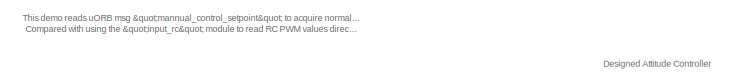
[diagram: root canvas - part 1/2, top left region]
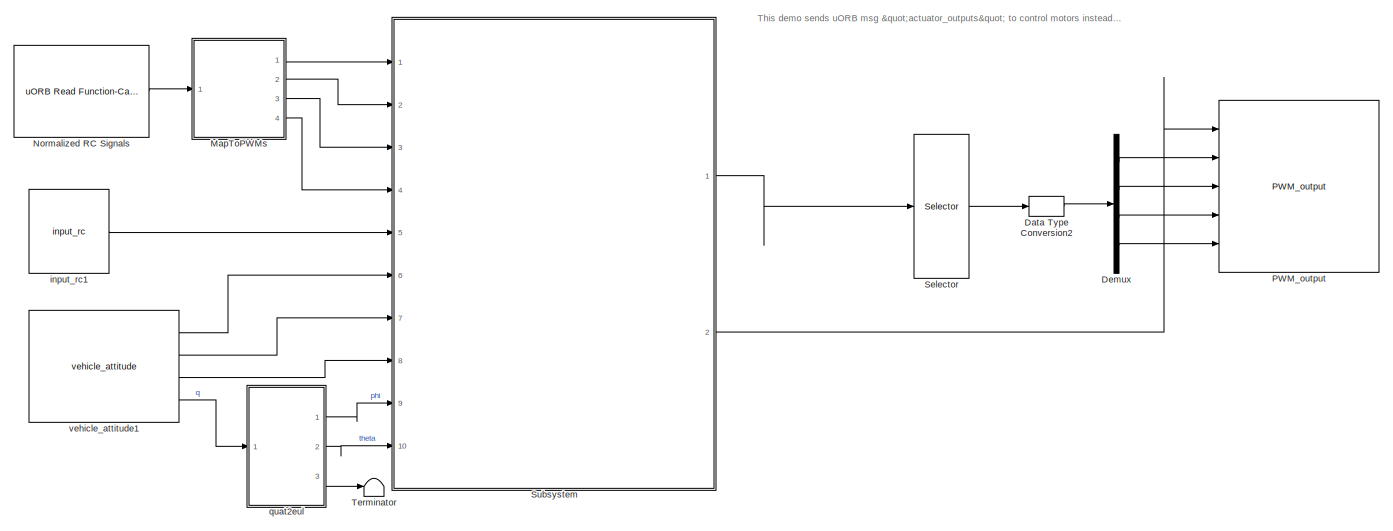
[diagram: root canvas - part 2/2, most of the canvas]
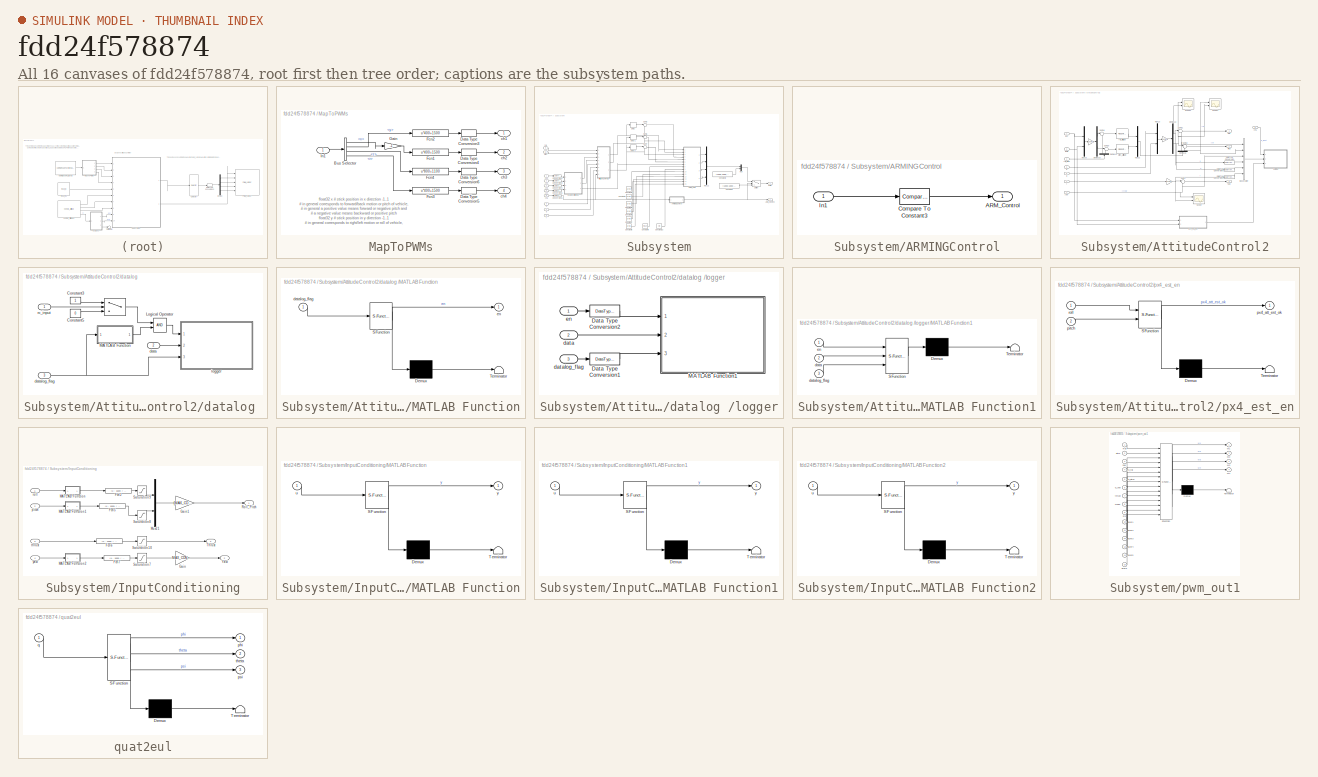
[diagram: thumbnail index - all 16 canvases of the model, root first then tree order]
MODEL slx_fdd24f578874
KIND model
CONFIG AbsTol = auto
CONFIG EnableMultiTasking = off
CONFIG FixedStep = 0.01
CONFIG InitFcn = Init_control
CONFIG MaxStep = auto
CONFIG MinStep = auto
CONFIG RelTol = 1e-3
CONFIG SampleTimeConstraint = Unconstrained
CONFIG Solver = ode4
CONFIG SolverName = ode4
CONFIG StartTime = 0.0
CONFIG StopTime = inf
BLOCK [DataTypeConversion] Data Type Conversion2
  OutDataTypeStr = uint16
  RndMeth = Floor
  SaturateOnIntegerOverflow = off
BLOCK [Demux] Demux
  Ports = [1, 4]
BLOCK [SubSystem] MapToPWMs
  Ports = [1, 4]
  RequestExecContextInheritance = off
BLOCK [BusSelector] MapToPWMs/Bus Selector
  OutputSignals = x,y,z,r
  Ports = [1, 4]
BLOCK [DataTypeConversion] MapToPWMs/Data Type Conversion3
  OutDataTypeStr = uint16
  RndMeth = Floor
  SaturateOnIntegerOverflow = off
BLOCK [DataTypeConversion] MapToPWMs/Data Type Conversion4
  OutDataTypeStr = uint16
  RndMeth = Floor
  SaturateOnIntegerOverflow = off
BLOCK [DataTypeConversion] MapToPWMs/Data Type Conversion5
  OutDataTypeStr = uint16
  RndMeth = Floor
  SaturateOnIntegerOverflow = off
BLOCK [DataTypeConversion] MapToPWMs/Data Type Conversion6
  OutDataTypeStr = uint16
  RndMeth = Floor
  SaturateOnIntegerOverflow = off
BLOCK [Fcn] MapToPWMs/Fcn1
  Expr = u*400+1500
BLOCK [Fcn] MapToPWMs/Fcn2
  Expr = u*400+1500
BLOCK [Fcn] MapToPWMs/Fcn3
  Expr = u*400+1500
BLOCK [Fcn] MapToPWMs/Fcn4
  Expr = u*800+1100
BLOCK [Gain] MapToPWMs/Gain
  Gain = -1
BLOCK [Inport] MapToPWMs/In1
BLOCK [Outport] MapToPWMs/ch1
  VectorParamsAs1DForOutWhenUnconnected = off
BLOCK [Outport] MapToPWMs/ch2
  Port = 2
  VectorParamsAs1DForOutWhenUnconnected = off
BLOCK [Outport] MapToPWMs/ch3
  Port = 3
  VectorParamsAs1DForOutWhenUnconnected = off
BLOCK [Outport] MapToPWMs/ch4
  Port = 4
  VectorParamsAs1DForOutWhenUnconnected = off
BLOCK [Reference] Normalized RC Signals  REF=pixhawk_slib_uORB_RW/uORB Read Function-Call Trigger
  Ports = [0, 1]
  SourceBlock = pixhawk_slib_uORB_RW/uORB Read Function-Call Trigger
  SourceProductName = Pixhawk Target Blocks
BLOCK [Reference] PWM_output  REF=pixhawk_slib_sensors_actuators/PWM_output
  Description = This block allows the user to send the appropriate PWM signals out to the PX4 outputs.  \nThese are usually connected to the ESCs which control the motor speeds. \nIn order for the flight control to arm (enable) the output from the software side, the ARM Output input must be held high (boolean TRUE).  \nOnly then will the PWM values be sent out the PX4 hardware ports.  \nThis is usually a function of ...<+249ch>
  Ports = [5]
  SourceBlock = pixhawk_slib_sensors_actuators/PWM_output
  SourceProductName = Pixhawk Target Blocks
  SourceType = PX4_Output_PWM
BLOCK [Selector] Selector
  IndexOptions = Index vector (dialog)
  Indices = [1 2 3 4]
  InputPortWidth = 8
  OutputSizes = 1
  Ports = [1, 1]
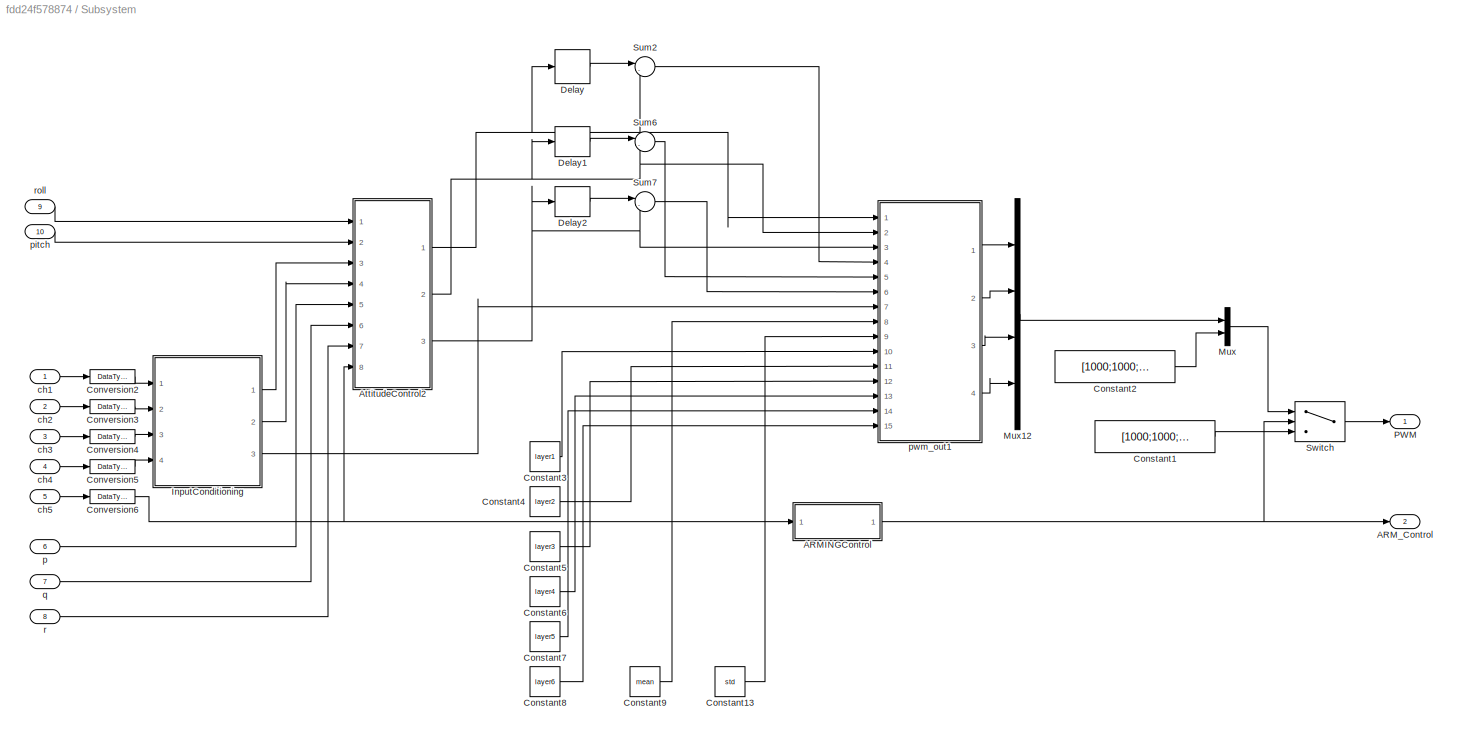
BLOCK [SubSystem] Subsystem
  Ports = [10, 2]
  RequestExecContextInheritance = off
BLOCK [SubSystem] Subsystem/ARMINGControl
  Ports = [1, 1]
  RequestExecContextInheritance = off
BLOCK [Outport] Subsystem/ARMINGControl/ARM_Control
  VectorParamsAs1DForOutWhenUnconnected = off
BLOCK [Reference] Subsystem/ARMINGControl/Compare To Constant3  REF=simulink/Logic and Bit
Operations/Compare
To Constant
  Ports = [1, 1]
  SourceBlock = simulink/Logic and Bit\nOperations/Compare\nTo Constant
  SourceProductBaseCode = SL
  SourceType = Compare To Constant
BLOCK [Inport] Subsystem/ARMINGControl/In1
BLOCK [Outport] Subsystem/ARM_Control
  Port = 2
  PortDimensions = 1
  SamplingMode = Sample based
  SignalType = real
  VectorParamsAs1DForOutWhenUnconnected = off
BLOCK [SubSystem] Subsystem/AttitudeControl2
  Ports = [8, 3]
  RequestExecContextInheritance = off
BLOCK [Gain] Subsystem/AttitudeControl2/ 
  Gain = 180/pi
BLOCK [Gain] Subsystem/AttitudeControl2/  
  Gain = 180/pi
BLOCK [Gain] Subsystem/AttitudeControl2/          
  Gain = 180/pi
BLOCK [BusCreator] Subsystem/AttitudeControl2/Bus Creator
  DisplayOption = bar
  InheritFromInputs = on
  Inputs = 6
  Ports = [6, 1]
BLOCK [DataTypeConversion] Subsystem/AttitudeControl2/Data Type Conversion
  OutDataTypeStr = double
  RndMeth = Floor
  SaturateOnIntegerOverflow = off
BLOCK [DataTypeConversion] Subsystem/AttitudeControl2/Data Type Conversion1
  OutDataTypeStr = double
  RndMeth = Floor
  SaturateOnIntegerOverflow = off
BLOCK [DataTypeConversion] Subsystem/AttitudeControl2/Data Type Conversion2
  OutDataTypeStr = double
  RndMeth = Floor
  SaturateOnIntegerOverflow = off
BLOCK [Demux] Subsystem/AttitudeControl2/Demux10
  Outputs = 2
  Ports = [1, 2]
BLOCK [Demux] Subsystem/AttitudeControl2/Demux12
  NameLocation = right
  Outputs = 2
  Ports = [1, 2]
BLOCK [Demux] Subsystem/AttitudeControl2/Demux13
  Outputs = 2
  Ports = [1, 2]
BLOCK [Demux] Subsystem/AttitudeControl2/Demux16
  NameLocation = right
  Outputs = 2
  Ports = [1, 2]
BLOCK [Mux] Subsystem/AttitudeControl2/Mux13
  DisplayOption = bar
  Inputs = 2
  Ports = [2, 1]
BLOCK [Mux] Subsystem/AttitudeControl2/Mux15
  DisplayOption = bar
  Inputs = 2
  Ports = [2, 1]
BLOCK [Mux] Subsystem/AttitudeControl2/Mux22
  DisplayOption = bar
  Inputs = 2
  Ports = [2, 1]
BLOCK [Outport] Subsystem/AttitudeControl2/Pitch
  Port = 2
  VectorParamsAs1DForOutWhenUnconnected = off
BLOCK [Outport] Subsystem/AttitudeControl2/Roll
  VectorParamsAs1DForOutWhenUnconnected = off
BLOCK [Scope] Subsystem/AttitudeControl2/Scope
  Floating = off
  NumInputPorts = 2
  Ports = [2]
  ScopeSpecificationString = Simulink.scopes.TimeScopeBlockCfg('CurrentConfiguration', extmgr.ConfigurationSet(extmgr.Configuration('Core','General UI',true),extmgr.Configuration('Core','Source UI',true),extmgr.Configuration('Sources','WiredSimulink',true,'DataLoggingVariableName','ScopeData2'),extmgr.Configuration('Visuals','Time Domain',true,'SerializedDisplays',{struct('MinYLimReal','-21.34606','MaxYLimReal','47.5262','YLa...<+1397ch>
BLOCK [Scope] Subsystem/AttitudeControl2/Scope1
  Floating = off
  NumInputPorts = 2
  Ports = [2]
  ScopeSpecificationString = Simulink.scopes.TimeScopeBlockCfg('CurrentConfiguration', extmgr.ConfigurationSet(extmgr.Configuration('Core','General UI',true),extmgr.Configuration('Core','Source UI',true),extmgr.Configuration('Sources','WiredSimulink',true,'DataLoggingVariableName','ScopeData3'),extmgr.Configuration('Visuals','Time Domain',true,'SerializedDisplays',{struct('MinYLimReal','-317.22955','MaxYLimReal','245.61283','...<+1406ch>
BLOCK [Scope] Subsystem/AttitudeControl2/Scope2
  Floating = off
  NumInputPorts = 2
  Ports = [2]
  ScopeSpecificationString = Simulink.scopes.TimeScopeBlockCfg('CurrentConfiguration', extmgr.ConfigurationSet(extmgr.Configuration('Core','General UI',true),extmgr.Configuration('Core','Source UI',true),extmgr.Configuration('Sources','WiredSimulink',true,'DataLoggingVariableName','ScopeData4'),extmgr.Configuration('Visuals','Time Domain',true,'SerializedDisplays',{struct('MinYLimReal','-330.49549','MaxYLimReal','242.5638','Y...<+1398ch>
BLOCK [Sum] Subsystem/AttitudeControl2/Sum17
  Inputs = |-+
  Ports = [2, 1]
BLOCK [Sum] Subsystem/AttitudeControl2/Sum18
  Inputs = |-+
  Ports = [2, 1]
BLOCK [Sum] Subsystem/AttitudeControl2/Sum19
  Inputs = |-+
  Ports = [2, 1]
BLOCK [Sum] Subsystem/AttitudeControl2/Sum21
  Inputs = |-+
  Ports = [2, 1]
BLOCK [Sum] Subsystem/AttitudeControl2/Sum22
  Inputs = |-+
  Ports = [2, 1]
BLOCK [Outport] Subsystem/AttitudeControl2/Yaw
  Port = 3
  VectorParamsAs1DForOutWhenUnconnected = off
BLOCK [Inport] Subsystem/AttitudeControl2/ch5
  Port = 8
BLOCK [SubSystem] Subsystem/AttitudeControl2/datalog 
  Ports = [3]
  RequestExecContextInheritance = off
BLOCK [Switch] Subsystem/AttitudeControl2/datalog / 
  Criteria = u2 > Threshold
  InputSameDT = off
  SaturateOnIntegerOverflow = off
  Threshold = 1600
BLOCK [Constant] Subsystem/AttitudeControl2/datalog /Constant3
BLOCK [Constant] Subsystem/AttitudeControl2/datalog /Constant5
  Value = 0
BLOCK [Logic] Subsystem/AttitudeControl2/datalog /Logical Operator
  AllPortsSameDT = off
  OutDataTypeStr = boolean
  Ports = [2, 1]
BLOCK [SubSystem] Subsystem/AttitudeControl2/datalog /MATLAB Function
  ErrorFcn = Stateflow.Translate.translate
  PermitHierarchicalResolution = ExplicitOnly
  Ports = [1, 1]
  RequestExecContextInheritance = off
  SFBlockType = MATLAB Function
  TreatAsAtomicUnit = on
BLOCK [Demux] Subsystem/AttitudeControl2/datalog /MATLAB Function/ Demux 
  Outputs = 1
  Ports = [1, 1]
BLOCK [S-Function] Subsystem/AttitudeControl2/datalog /MATLAB Function/ SFunction 
  EnableBusSupport = on
  FunctionName = sf_sfun
  PortCounts = [1 2]
  Ports = [1, 2]
  SFcnIsStateOwnerBlock = off
  SFunctionDeploymentMode = off
  Tag = Stateflow S-Function 4
BLOCK [Terminator] Subsystem/AttitudeControl2/datalog /MATLAB Function/ Terminator 
BLOCK [Inport] Subsystem/AttitudeControl2/datalog /MATLAB Function/datalog_flag
BLOCK [Outport] Subsystem/AttitudeControl2/datalog /MATLAB Function/en
  VectorParamsAs1DForOutWhenUnconnected = off
BLOCK [Inport] Subsystem/AttitudeControl2/datalog /data
  Port = 2
BLOCK [Inport] Subsystem/AttitudeControl2/datalog /datalog_flag
  Port = 3
BLOCK [SubSystem] Subsystem/AttitudeControl2/datalog /logger
  Ports = [3]
  RequestExecContextInheritance = off
BLOCK [DataTypeConversion] Subsystem/AttitudeControl2/datalog /logger/Data Type Conversion1
  OutDataTypeStr = boolean
  RndMeth = Floor
  SaturateOnIntegerOverflow = off
BLOCK [DataTypeConversion] Subsystem/AttitudeControl2/datalog /logger/Data Type Conversion2
  OutDataTypeStr = boolean
  RndMeth = Floor
  SaturateOnIntegerOverflow = off
BLOCK [SubSystem] Subsystem/AttitudeControl2/datalog /logger/MATLAB Function1
  ErrorFcn = Stateflow.Translate.translate
  PermitHierarchicalResolution = ExplicitOnly
  Ports = [3]
  RequestExecContextInheritance = off
  SFBlockType = MATLAB Function
  TreatAsAtomicUnit = on
BLOCK [Demux] Subsystem/AttitudeControl2/datalog /logger/MATLAB Function1/ Demux 
  Outputs = 1
  Ports = [1, 1]
BLOCK [S-Function] Subsystem/AttitudeControl2/datalog /logger/MATLAB Function1/ SFunction 
  EnableBusSupport = on
  FunctionName = sf_sfun
  Parameters = cacheflag,logname,numRecs
  PortCounts = [3 1]
  Ports = [3, 1]
  SFcnIsStateOwnerBlock = off
  SFunctionDeploymentMode = off
  Tag = Stateflow S-Function 5
BLOCK [Terminator] Subsystem/AttitudeControl2/datalog /logger/MATLAB Function1/ Terminator 
BLOCK [Inport] Subsystem/AttitudeControl2/datalog /logger/MATLAB Function1/data
  Port = 2
BLOCK [Inport] Subsystem/AttitudeControl2/datalog /logger/MATLAB Function1/datalog_flag
  Port = 3
BLOCK [Inport] Subsystem/AttitudeControl2/datalog /logger/MATLAB Function1/en
BLOCK [Inport] Subsystem/AttitudeControl2/datalog /logger/data
  Port = 2
BLOCK [Inport] Subsystem/AttitudeControl2/datalog /logger/datalog_flag
  Port = 3
BLOCK [Inport] Subsystem/AttitudeControl2/datalog /logger/en
BLOCK [Inport] Subsystem/AttitudeControl2/datalog /rc_input
BLOCK [Inport] Subsystem/AttitudeControl2/p
  Port = 5
BLOCK [Inport] Subsystem/AttitudeControl2/phi
BLOCK [Reference] Subsystem/AttitudeControl2/pitch_attitude  REF=simulink/Continuous/PID Controller
  Ports = [1, 1]
  SourceBlock = simulink/Continuous/PID Controller
  SourceProductBaseCode = SL
  SourceType = PID 1dof
BLOCK [SubSystem] Subsystem/AttitudeControl2/px4_est_en
  ErrorFcn = Stateflow.Translate.translate
  PermitHierarchicalResolution = ExplicitOnly
  Ports = [2, 1]
  RequestExecContextInheritance = off
  SFBlockType = MATLAB Function
  TreatAsAtomicUnit = on
BLOCK [Demux] Subsystem/AttitudeControl2/px4_est_en/ Demux 
  Outputs = 1
  Ports = [1, 1]
BLOCK [S-Function] Subsystem/AttitudeControl2/px4_est_en/ SFunction 
  EnableBusSupport = on
  FunctionName = sf_sfun
  PortCounts = [2 2]
  Ports = [2, 2]
  SFcnIsStateOwnerBlock = off
  SFunctionDeploymentMode = off
  Tag = Stateflow S-Function 6
BLOCK [Terminator] Subsystem/AttitudeControl2/px4_est_en/ Terminator 
BLOCK [Inport] Subsystem/AttitudeControl2/px4_est_en/pitch
  Port = 2
BLOCK [Outport] Subsystem/AttitudeControl2/px4_est_en/px4_att_est_ok
  VectorParamsAs1DForOutWhenUnconnected = off
BLOCK [Inport] Subsystem/AttitudeControl2/px4_est_en/roll
BLOCK [Inport] Subsystem/AttitudeControl2/q
  Port = 6
BLOCK [Inport] Subsystem/AttitudeControl2/r
  Port = 7
BLOCK [Reference] Subsystem/AttitudeControl2/roll_attitude  REF=simulink/Continuous/PID Controller
  Ports = [1, 1]
  SourceBlock = simulink/Continuous/PID Controller
  SourceProductBaseCode = SL
  SourceType = PID 1dof
BLOCK [Inport] Subsystem/AttitudeControl2/roll_pitch
  Port = 3
BLOCK [Inport] Subsystem/AttitudeControl2/theta
  Port = 2
BLOCK [Inport] Subsystem/AttitudeControl2/yaw
  Port = 4
BLOCK [Constant] Subsystem/Constant1
  Value = [1000;1000;1000;1000;1000;1000;1000;1000]
BLOCK [Constant] Subsystem/Constant13
  Value = std
BLOCK [Constant] Subsystem/Constant2
  Value = [1000;1000;1000;1000]
BLOCK [Constant] Subsystem/Constant3
  Value = layer1
BLOCK [Constant] Subsystem/Constant4
  Value = layer2
BLOCK [Constant] Subsystem/Constant5
  Value = layer3
BLOCK [Constant] Subsystem/Constant6
  Value = layer4
BLOCK [Constant] Subsystem/Constant7
  Value = layer5
BLOCK [Constant] Subsystem/Constant8
  Value = layer6
BLOCK [Constant] Subsystem/Constant9
  Value = mean
BLOCK [DataTypeConversion] Subsystem/Conversion2
  OutDataTypeStr = double
  RndMeth = Floor
  SaturateOnIntegerOverflow = off
BLOCK [DataTypeConversion] Subsystem/Conversion3
  OutDataTypeStr = double
  RndMeth = Floor
  SaturateOnIntegerOverflow = off
BLOCK [DataTypeConversion] Subsystem/Conversion4
  OutDataTypeStr = double
  RndMeth = Floor
  SaturateOnIntegerOverflow = off
BLOCK [DataTypeConversion] Subsystem/Conversion5
  OutDataTypeStr = double
  RndMeth = Floor
  SaturateOnIntegerOverflow = off
BLOCK [DataTypeConversion] Subsystem/Conversion6
  OutDataTypeStr = double
  RndMeth = Floor
  SaturateOnIntegerOverflow = off
BLOCK [Delay] Subsystem/Delay
  DelayLength = 1
  InitialCondition = 0
  InputPortMap = u0
  Ports = [1, 1]
BLOCK [Delay] Subsystem/Delay1
  DelayLength = 1
  InitialCondition = 0
  InputPortMap = u0
  Ports = [1, 1]
BLOCK [Delay] Subsystem/Delay2
  DelayLength = 1
  InitialCondition = 0
  InputPortMap = u0
  Ports = [1, 1]
BLOCK [SubSystem] Subsystem/InputConditioning
  Ports = [4, 3]
  RequestExecContextInheritance = off
BLOCK [Fcn] Subsystem/InputConditioning/Fcn2
  Expr = (u - 1500) / 400
BLOCK [Fcn] Subsystem/InputConditioning/Fcn5
  Expr = (u - 1500) / 400
BLOCK [Fcn] Subsystem/InputConditioning/Fcn6
  Expr = (u - 1100) / 800
BLOCK [Fcn] Subsystem/InputConditioning/Fcn7
  Expr = (u - 1500) / 400
BLOCK [Gain] Subsystem/InputConditioning/Gain
  Gain = MAX_CONTROL_ANGLE_RATE_Y
BLOCK [Gain] Subsystem/InputConditioning/Gain1
  Gain = [MAX_CONTROL_ANGLE_RP MAX_CONTROL_ANGLE_RP]
  OutDataTypeStr = Inherit: Inherit via back propagation
BLOCK [SubSystem] Subsystem/InputConditioning/MATLAB Function
  ErrorFcn = Stateflow.Translate.translate
  PermitHierarchicalResolution = ExplicitOnly
  Ports = [1, 1]
  RequestExecContextInheritance = off
  SFBlockType = MATLAB Function
  TreatAsAtomicUnit = on
BLOCK [Demux] Subsystem/InputConditioning/MATLAB Function/ Demux 
  Outputs = 1
  Ports = [1, 1]
BLOCK [S-Function] Subsystem/InputConditioning/MATLAB Function/ SFunction 
  EnableBusSupport = on
  FunctionName = sf_sfun
  PortCounts = [1 2]
  Ports = [1, 2]
  SFcnIsStateOwnerBlock = off
  SFunctionDeploymentMode = off
  Tag = Stateflow S-Function 1
BLOCK [Terminator] Subsystem/InputConditioning/MATLAB Function/ Terminator 
BLOCK [Inport] Subsystem/InputConditioning/MATLAB Function/u
BLOCK [Outport] Subsystem/InputConditioning/MATLAB Function/y
  VectorParamsAs1DForOutWhenUnconnected = off
BLOCK [SubSystem] Subsystem/InputConditioning/MATLAB Function1
  ErrorFcn = Stateflow.Translate.translate
  PermitHierarchicalResolution = ExplicitOnly
  Ports = [1, 1]
  RequestExecContextInheritance = off
  SFBlockType = MATLAB Function
  TreatAsAtomicUnit = on
BLOCK [Demux] Subsystem/InputConditioning/MATLAB Function1/ Demux 
  Outputs = 1
  Ports = [1, 1]
BLOCK [S-Function] Subsystem/InputConditioning/MATLAB Function1/ SFunction 
  EnableBusSupport = on
  FunctionName = sf_sfun
  PortCounts = [1 2]
  Ports = [1, 2]
  SFcnIsStateOwnerBlock = off
  SFunctionDeploymentMode = off
  Tag = Stateflow S-Function 2
BLOCK [Terminator] Subsystem/InputConditioning/MATLAB Function1/ Terminator 
BLOCK [Inport] Subsystem/InputConditioning/MATLAB Function1/u
BLOCK [Outport] Subsystem/InputConditioning/MATLAB Function1/y
  VectorParamsAs1DForOutWhenUnconnected = off
BLOCK [SubSystem] Subsystem/InputConditioning/MATLAB Function2
  ErrorFcn = Stateflow.Translate.translate
  PermitHierarchicalResolution = ExplicitOnly
  Ports = [1, 1]
  RequestExecContextInheritance = off
  SFBlockType = MATLAB Function
  TreatAsAtomicUnit = on
BLOCK [Demux] Subsystem/InputConditioning/MATLAB Function2/ Demux 
  Outputs = 1
  Ports = [1, 1]
BLOCK [S-Function] Subsystem/InputConditioning/MATLAB Function2/ SFunction 
  EnableBusSupport = on
  FunctionName = sf_sfun
  PortCounts = [1 2]
  Ports = [1, 2]
  SFcnIsStateOwnerBlock = off
  SFunctionDeploymentMode = off
  Tag = Stateflow S-Function 3
BLOCK [Terminator] Subsystem/InputConditioning/MATLAB Function2/ Terminator 
BLOCK [Inport] Subsystem/InputConditioning/MATLAB Function2/u
BLOCK [Outport] Subsystem/InputConditioning/MATLAB Function2/y
  VectorParamsAs1DForOutWhenUnconnected = off
BLOCK [Mux] Subsystem/InputConditioning/Mux21
  DisplayOption = bar
  Inputs = 2
  Ports = [2, 1]
BLOCK [Outport] Subsystem/InputConditioning/Roll_Pitch
  VectorParamsAs1DForOutWhenUnconnected = off
BLOCK [Saturate] Subsystem/InputConditioning/Saturation10
  LowerLimit = 0
  UpperLimit = 1
BLOCK [Saturate] Subsystem/InputConditioning/Saturation7
  LowerLimit = -1
  UpperLimit = 1
BLOCK [Saturate] Subsystem/InputConditioning/Saturation8
  LowerLimit = -1
  UpperLimit = 1
BLOCK [Saturate] Subsystem/InputConditioning/Saturation9
  LowerLimit = -1
  UpperLimit = 1
BLOCK [Outport] Subsystem/InputConditioning/Thrust
  Port = 3
  VectorParamsAs1DForOutWhenUnconnected = off
BLOCK [Outport] Subsystem/InputConditioning/Yaw
  Port = 2
  VectorParamsAs1DForOutWhenUnconnected = off
BLOCK [Inport] Subsystem/InputConditioning/pitch
  Port = 2
BLOCK [Inport] Subsystem/InputConditioning/roll
BLOCK [Inport] Subsystem/InputConditioning/thrust
  Port = 3
BLOCK [Inport] Subsystem/InputConditioning/yaw
  Port = 4
BLOCK [Mux] Subsystem/Mux
  DisplayOption = bar
  Inputs = 2
  Ports = [2, 1]
BLOCK [Mux] Subsystem/Mux12
  DisplayOption = bar
  Ports = [4, 1]
BLOCK [Outport] Subsystem/PWM
  PortDimensions = 8
  SamplingMode = Sample based
  SignalType = real
  VectorParamsAs1DForOutWhenUnconnected = off
BLOCK [Sum] Subsystem/Sum2
  Inputs = |-+
  Ports = [2, 1]
BLOCK [Sum] Subsystem/Sum6
  Inputs = |-+
  Ports = [2, 1]
BLOCK [Sum] Subsystem/Sum7
  Inputs = |-+
  Ports = [2, 1]
BLOCK [Switch] Subsystem/Switch
  Criteria = u2 > Threshold
  InputSameDT = off
  SaturateOnIntegerOverflow = off
  Threshold = 0.5
BLOCK [Inport] Subsystem/ch1
  OutDataTypeStr = uint16
  PortDimensions = 1
  SamplingMode = Sample based
  SignalType = real
BLOCK [Inport] Subsystem/ch2
  OutDataTypeStr = uint16
  Port = 2
  PortDimensions = 1
  SamplingMode = Sample based
  SignalType = real
BLOCK [Inport] Subsystem/ch3
  OutDataTypeStr = uint16
  Port = 3
  PortDimensions = 1
  SamplingMode = Sample based
  SignalType = real
BLOCK [Inport] Subsystem/ch4
  OutDataTypeStr = uint16
  Port = 4
  PortDimensions = 1
  SamplingMode = Sample based
  SignalType = real
BLOCK [Inport] Subsystem/ch5
  Interpolate = off
  OutDataTypeStr = uint16
  Port = 5
  PortDimensions = 1
  SamplingMode = Sample based
  SignalType = real
BLOCK [Inport] Subsystem/p
  Port = 6
  PortDimensions = 1
  SamplingMode = Sample based
  SignalType = real
BLOCK [Inport] Subsystem/pitch
  Port = 10
  PortDimensions = 1
  SamplingMode = Sample based
  SignalType = real
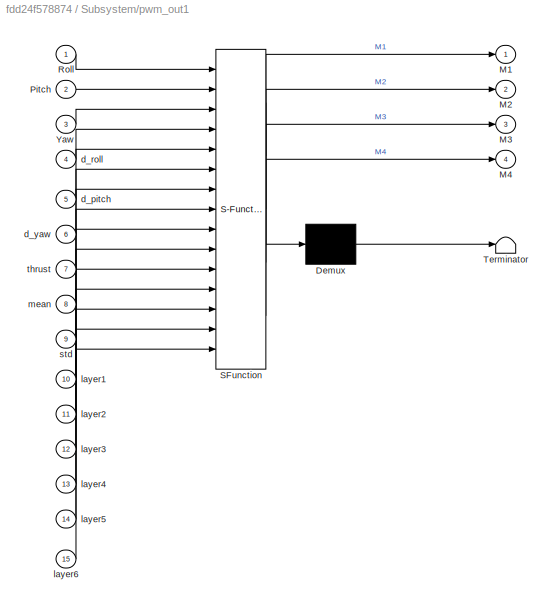
BLOCK [SubSystem] Subsystem/pwm_out1
  ErrorFcn = Stateflow.Translate.translate
  PermitHierarchicalResolution = ExplicitOnly
  Ports = [15, 4]
  RequestExecContextInheritance = off
  SFBlockType = MATLAB Function
  TreatAsAtomicUnit = on
BLOCK [Demux] Subsystem/pwm_out1/ Demux 
  Outputs = 1
  Ports = [1, 1]
BLOCK [S-Function] Subsystem/pwm_out1/ SFunction 
  EnableBusSupport = on
  FunctionName = sf_sfun
  PortCounts = [15 5]
  Ports = [15, 5]
  SFcnIsStateOwnerBlock = off
  SFunctionDeploymentMode = off
  Tag = Stateflow S-Function 8
BLOCK [Terminator] Subsystem/pwm_out1/ Terminator 
BLOCK [Outport] Subsystem/pwm_out1/M1
  VectorParamsAs1DForOutWhenUnconnected = off
BLOCK [Outport] Subsystem/pwm_out1/M2
  Port = 2
  VectorParamsAs1DForOutWhenUnconnected = off
BLOCK [Outport] Subsystem/pwm_out1/M3
  Port = 3
  VectorParamsAs1DForOutWhenUnconnected = off
BLOCK [Outport] Subsystem/pwm_out1/M4
  Port = 4
  VectorParamsAs1DForOutWhenUnconnected = off
BLOCK [Inport] Subsystem/pwm_out1/Pitch
  Port = 2
BLOCK [Inport] Subsystem/pwm_out1/Roll
BLOCK [Inport] Subsystem/pwm_out1/Yaw
  Port = 3
BLOCK [Inport] Subsystem/pwm_out1/d_pitch
  Port = 5
BLOCK [Inport] Subsystem/pwm_out1/d_roll
  Port = 4
BLOCK [Inport] Subsystem/pwm_out1/d_yaw
  Port = 6
BLOCK [Inport] Subsystem/pwm_out1/layer1
  Port = 10
BLOCK [Inport] Subsystem/pwm_out1/layer2
  Port = 11
BLOCK [Inport] Subsystem/pwm_out1/layer3
  Port = 12
BLOCK [Inport] Subsystem/pwm_out1/layer4
  Port = 13
BLOCK [Inport] Subsystem/pwm_out1/layer5
  Port = 14
BLOCK [Inport] Subsystem/pwm_out1/layer6
  Port = 15
BLOCK [Inport] Subsystem/pwm_out1/mean
  Port = 8
BLOCK [Inport] Subsystem/pwm_out1/std
  Port = 9
BLOCK [Inport] Subsystem/pwm_out1/thrust
  Port = 7
BLOCK [Inport] Subsystem/q
  Port = 7
  PortDimensions = 1
  SamplingMode = Sample based
  SignalType = real
BLOCK [Inport] Subsystem/r
  Port = 8
  PortDimensions = 1
  SamplingMode = Sample based
  SignalType = real
BLOCK [Inport] Subsystem/roll
  Port = 9
  PortDimensions = 1
  SamplingMode = Sample based
  SignalType = real
BLOCK [Terminator] Terminator
BLOCK [Reference] input_rc1  REF=pixhawk_slib_sensors_actuators/input_rc
  Description = RC Input Block\n\nThis block provides user input control to the model.\nIt uses the input_rc uORB topic.\n\nThe user has the ability to choose which channels are available as outputs from this block and also some optional outputs. These include \nChannels 1 through 18\ndouble data type indicating the PWM value from the controller \nmeasured pulse widths for each of the supported channels \nChannel Count \nu...<+1797ch>
  Ports = [0, 1]
  SourceBlock = pixhawk_slib_sensors_actuators/input_rc
  SourceProductName = Pixhawk Target Blocks
  SourceType = PX4_Input_RC
BLOCK [SubSystem] quat2eul
  ErrorFcn = Stateflow.Translate.translate
  PermitHierarchicalResolution = ExplicitOnly
  Ports = [1, 3]
  RequestExecContextInheritance = off
  SFBlockType = MATLAB Function
  TreatAsAtomicUnit = on
BLOCK [Demux] quat2eul/ Demux 
  Outputs = 1
  Ports = [1, 1]
BLOCK [S-Function] quat2eul/ SFunction 
  EnableBusSupport = on
  FunctionName = sf_sfun
  PortCounts = [1 4]
  Ports = [1, 4]
  SFcnIsStateOwnerBlock = off
  SFunctionDeploymentMode = off
  Tag = Stateflow S-Function 10
BLOCK [Terminator] quat2eul/ Terminator 
BLOCK [Outport] quat2eul/phi
  VectorParamsAs1DForOutWhenUnconnected = off
BLOCK [Outport] quat2eul/psi
  Port = 3
  VectorParamsAs1DForOutWhenUnconnected = off
BLOCK [Inport] quat2eul/q
BLOCK [Outport] quat2eul/theta
  Port = 2
  VectorParamsAs1DForOutWhenUnconnected = off
BLOCK [Reference] vehicle_attitude1  REF=pixhawk_slib_sensors_actuators/vehicle_attitude
  Ports = [0, 4]
  SourceBlock = pixhawk_slib_sensors_actuators/vehicle_attitude
  SourceProductName = Pixhawk Target Blocks
  SourceType = PX4_Vehicle_Attitude
ANNOTATION (root): Designed Attitude Controller
ANNOTATION (root): This demo reads uORB msg "mannual_control_setpoint" to acquire normalized and calibrated RC signals (-1~1 for pitch, roll, yaw control, and 0~1 for throttle control) and then map them to 1000~2000's PWMs values. Compared with using the "input_rc" module to read RC PWM values directlly, this is more reliable and convinenient because you don't need to worry about calibration of RCs.
ANNOTATION (root): This demo sends uORB msg "actuator_outputs" to control motors instead of using the "PWM_output" module, because this demo is for hardware-in-the-loop simulation, we need to send control signals to CopterSim instead of acutal motors.
ANNOTATION MapToPWMs: float32 x # stick position in x direction -1..1 # in general corresponds to forward/back motion or pitch of vehicle, # in general a positive value means forward or negative pitch and # a negative value means backward or positive pitch float32 y # stick position in y direction -1..1 # in general corresponds to right/left motion or roll of vehicle, # in general a positive value means right or positi...<+526ch>
LINE Data Type Conversion2:1 -> Demux:1
LINE Demux:1 -> PWM_output:2
LINE Demux:2 -> PWM_output:3
LINE Demux:3 -> PWM_output:4
LINE Demux:4 -> PWM_output:5
LINE MapToPWMs/Bus Selector:1 -> MapToPWMs/Gain:1
LINE MapToPWMs/Bus Selector:2 -> MapToPWMs/Fcn2:1
LINE MapToPWMs/Bus Selector:3 -> MapToPWMs/Fcn4:1
LINE MapToPWMs/Bus Selector:4 -> MapToPWMs/Fcn3:1
LINE MapToPWMs/Data Type Conversion3:1 -> MapToPWMs/ch1:1
LINE MapToPWMs/Data Type Conversion4:1 -> MapToPWMs/ch2:1
LINE MapToPWMs/Data Type Conversion5:1 -> MapToPWMs/ch4:1
LINE MapToPWMs/Data Type Conversion6:1 -> MapToPWMs/ch3:1
LINE MapToPWMs/Fcn1:1 -> MapToPWMs/Data Type Conversion4:1
LINE MapToPWMs/Fcn2:1 -> MapToPWMs/Data Type Conversion3:1
LINE MapToPWMs/Fcn3:1 -> MapToPWMs/Data Type Conversion5:1
LINE MapToPWMs/Fcn4:1 -> MapToPWMs/Data Type Conversion6:1
LINE MapToPWMs/Gain:1 -> MapToPWMs/Fcn1:1
LINE MapToPWMs/In1:1 -> MapToPWMs/Bus Selector:1
LINE MapToPWMs:1 -> Subsystem:1
LINE MapToPWMs:2 -> Subsystem:2
LINE MapToPWMs:3 -> Subsystem:3
LINE MapToPWMs:4 -> Subsystem:4
LINE Normalized RC Signals:1 -> MapToPWMs:1
LINE Selector:1 -> Data Type Conversion2:1
LINE Subsystem/ARMINGControl/Compare To Constant3:1 -> Subsystem/ARMINGControl/ARM_Control:1
LINE Subsystem/ARMINGControl/In1:1 -> Subsystem/ARMINGControl/Compare To Constant3:1
NET Subsystem/ARMINGControl:1 -> Subsystem/ARM_Control:1, Subsystem/Switch:2
NET Subsystem/AttitudeControl2/          :1 -> Subsystem/AttitudeControl2/Data Type Conversion2:1, Subsystem/AttitudeControl2/Scope:2, Subsystem/AttitudeControl2/Sum17:1
LINE Subsystem/AttitudeControl2/  :1 -> Subsystem/AttitudeControl2/Demux13:1
LINE Subsystem/AttitudeControl2/ :1 -> Subsystem/AttitudeControl2/Demux10:1
LINE Subsystem/AttitudeControl2/Bus Creator:1 -> Subsystem/AttitudeControl2/datalog :2
LINE Subsystem/AttitudeControl2/Data Type Conversion1:1 -> Subsystem/AttitudeControl2/Bus Creator:5
LINE Subsystem/AttitudeControl2/Data Type Conversion2:1 -> Subsystem/AttitudeControl2/Bus Creator:6
LINE Subsystem/AttitudeControl2/Data Type Conversion:1 -> Subsystem/AttitudeControl2/Bus Creator:4
LINE Subsystem/AttitudeControl2/Demux10:1 -> Subsystem/AttitudeControl2/Sum18:1
LINE Subsystem/AttitudeControl2/Demux10:2 -> Subsystem/AttitudeControl2/Sum19:1
LINE Subsystem/AttitudeControl2/Demux12:1 -> Subsystem/AttitudeControl2/Sum18:2
LINE Subsystem/AttitudeControl2/Demux12:2 -> Subsystem/AttitudeControl2/Sum19:2
NET Subsystem/AttitudeControl2/Demux13:1 -> Subsystem/AttitudeControl2/Data Type Conversion:1, Subsystem/AttitudeControl2/Scope2:2, Subsystem/AttitudeControl2/Sum21:1
NET Subsystem/AttitudeControl2/Demux13:2 -> Subsystem/AttitudeControl2/Data Type Conversion1:1, Subsystem/AttitudeControl2/Scope1:2, Subsystem/AttitudeControl2/Sum22:1
NET Subsystem/AttitudeControl2/Demux16:1 -> Subsystem/AttitudeControl2/Bus Creator:1, Subsystem/AttitudeControl2/Scope2:1, Subsystem/AttitudeControl2/Sum21:2
NET Subsystem/AttitudeControl2/Demux16:2 -> Subsystem/AttitudeControl2/Bus Creator:2, Subsystem/AttitudeControl2/Scope1:1, Subsystem/AttitudeControl2/Sum22:2
LINE Subsystem/AttitudeControl2/Mux13:1 -> Subsystem/AttitudeControl2/  :1
LINE Subsystem/AttitudeControl2/Mux15:1 -> Subsystem/AttitudeControl2/ :1
LINE Subsystem/AttitudeControl2/Mux22:1 -> Subsystem/AttitudeControl2/Demux16:1
LINE Subsystem/AttitudeControl2/Sum17:1 -> Subsystem/AttitudeControl2/Yaw:1
LINE Subsystem/AttitudeControl2/Sum18:1 -> Subsystem/AttitudeControl2/roll_attitude:1
LINE Subsystem/AttitudeControl2/Sum19:1 -> Subsystem/AttitudeControl2/pitch_attitude:1
LINE Subsystem/AttitudeControl2/Sum21:1 -> Subsystem/AttitudeControl2/Roll:1
LINE Subsystem/AttitudeControl2/Sum22:1 -> Subsystem/AttitudeControl2/Pitch:1
LINE Subsystem/AttitudeControl2/ch5:1 -> Subsystem/AttitudeControl2/datalog :1
LINE Subsystem/AttitudeControl2/datalog / :1 -> Subsystem/AttitudeControl2/datalog /Logical Operator:1
LINE Subsystem/AttitudeControl2/datalog /Constant3:1 -> Subsystem/AttitudeControl2/datalog / :1
LINE Subsystem/AttitudeControl2/datalog /Constant5:1 -> Subsystem/AttitudeControl2/datalog / :3
LINE Subsystem/AttitudeControl2/datalog /Logical Operator:1 -> Subsystem/AttitudeControl2/datalog /logger:1
LINE Subsystem/AttitudeControl2/datalog /MATLAB Function:1 -> Subsystem/AttitudeControl2/datalog /Logical Operator:2
LINE Subsystem/AttitudeControl2/datalog /data:1 -> Subsystem/AttitudeControl2/datalog /logger:2
NET Subsystem/AttitudeControl2/datalog /datalog_flag:1 -> Subsystem/AttitudeControl2/datalog /MATLAB Function:1, Subsystem/AttitudeControl2/datalog /logger:3
LINE Subsystem/AttitudeControl2/datalog /logger/Data Type Conversion1:1 -> Subsystem/AttitudeControl2/datalog /logger/MATLAB Function1:3
LINE Subsystem/AttitudeControl2/datalog /logger/Data Type Conversion2:1 -> Subsystem/AttitudeControl2/datalog /logger/MATLAB Function1:1
LINE Subsystem/AttitudeControl2/datalog /logger/data:1 -> Subsystem/AttitudeControl2/datalog /logger/MATLAB Function1:2
LINE Subsystem/AttitudeControl2/datalog /logger/datalog_flag:1 -> Subsystem/AttitudeControl2/datalog /logger/Data Type Conversion1:1
LINE Subsystem/AttitudeControl2/datalog /logger/en:1 -> Subsystem/AttitudeControl2/datalog /logger/Data Type Conversion2:1
LINE Subsystem/AttitudeControl2/datalog /rc_input:1 -> Subsystem/AttitudeControl2/datalog / :2
LINE Subsystem/AttitudeControl2/p:1 -> Subsystem/AttitudeControl2/Mux13:1
NET Subsystem/AttitudeControl2/phi:1 -> Subsystem/AttitudeControl2/Mux15:1, Subsystem/AttitudeControl2/px4_est_en:1
LINE Subsystem/AttitudeControl2/pitch_attitude:1 -> Subsystem/AttitudeControl2/Mux22:2
LINE Subsystem/AttitudeControl2/px4_est_en:1 -> Subsystem/AttitudeControl2/datalog :3
LINE Subsystem/AttitudeControl2/q:1 -> Subsystem/AttitudeControl2/Mux13:2
LINE Subsystem/AttitudeControl2/r:1 -> Subsystem/AttitudeControl2/          :1
LINE Subsystem/AttitudeControl2/roll_attitude:1 -> Subsystem/AttitudeControl2/Mux22:1
LINE Subsystem/AttitudeControl2/roll_pitch:1 -> Subsystem/AttitudeControl2/Demux12:1
NET Subsystem/AttitudeControl2/theta:1 -> Subsystem/AttitudeControl2/Mux15:2, Subsystem/AttitudeControl2/px4_est_en:2
NET Subsystem/AttitudeControl2/yaw:1 -> Subsystem/AttitudeControl2/Bus Creator:3, Subsystem/AttitudeControl2/Scope:1, Subsystem/AttitudeControl2/Sum17:2
NET Subsystem/AttitudeControl2:1 -> Subsystem/Delay:1, Subsystem/Sum2:2, Subsystem/pwm_out1:1
NET Subsystem/AttitudeControl2:2 -> Subsystem/Delay1:1, Subsystem/Sum6:2, Subsystem/pwm_out1:2
NET Subsystem/AttitudeControl2:3 -> Subsystem/Delay2:1, Subsystem/Sum7:2, Subsystem/pwm_out1:3
LINE Subsystem/Constant13:1 -> Subsystem/pwm_out1:9
LINE Subsystem/Constant1:1 -> Subsystem/Switch:3
LINE Subsystem/Constant2:1 -> Subsystem/Mux:2
LINE Subsystem/Constant3:1 -> Subsystem/pwm_out1:10
LINE Subsystem/Constant4:1 -> Subsystem/pwm_out1:11
LINE Subsystem/Constant5:1 -> Subsystem/pwm_out1:12
LINE Subsystem/Constant6:1 -> Subsystem/pwm_out1:13
LINE Subsystem/Constant7:1 -> Subsystem/pwm_out1:14
LINE Subsystem/Constant8:1 -> Subsystem/pwm_out1:15
LINE Subsystem/Constant9:1 -> Subsystem/pwm_out1:8
LINE Subsystem/Conversion2:1 -> Subsystem/InputConditioning:1
LINE Subsystem/Conversion3:1 -> Subsystem/InputConditioning:2
LINE Subsystem/Conversion4:1 -> Subsystem/InputConditioning:3
LINE Subsystem/Conversion5:1 -> Subsystem/InputConditioning:4
NET Subsystem/Conversion6:1 -> Subsystem/ARMINGControl:1, Subsystem/AttitudeControl2:8
LINE Subsystem/Delay1:1 -> Subsystem/Sum6:1
LINE Subsystem/Delay2:1 -> Subsystem/Sum7:1
LINE Subsystem/Delay:1 -> Subsystem/Sum2:1
LINE Subsystem/InputConditioning/Fcn2:1 -> Subsystem/InputConditioning/Saturation9:1
LINE Subsystem/InputConditioning/Fcn5:1 -> Subsystem/InputConditioning/Saturation8:1
LINE Subsystem/InputConditioning/Fcn6:1 -> Subsystem/InputConditioning/Saturation10:1
LINE Subsystem/InputConditioning/Fcn7:1 -> Subsystem/InputConditioning/Saturation7:1
LINE Subsystem/InputConditioning/Gain1:1 -> Subsystem/InputConditioning/Roll_Pitch:1
LINE Subsystem/InputConditioning/Gain:1 -> Subsystem/InputConditioning/Yaw:1
LINE Subsystem/InputConditioning/MATLAB Function1:1 -> Subsystem/InputConditioning/Fcn5:1
LINE Subsystem/InputConditioning/MATLAB Function2:1 -> Subsystem/InputConditioning/Fcn7:1
LINE Subsystem/InputConditioning/MATLAB Function:1 -> Subsystem/InputConditioning/Fcn2:1
LINE Subsystem/InputConditioning/Mux21:1 -> Subsystem/InputConditioning/Gain1:1
LINE Subsystem/InputConditioning/Saturation10:1 -> Subsystem/InputConditioning/Thrust:1
LINE Subsystem/InputConditioning/Saturation7:1 -> Subsystem/InputConditioning/Gain:1
LINE Subsystem/InputConditioning/Saturation8:1 -> Subsystem/InputConditioning/Mux21:2
LINE Subsystem/InputConditioning/Saturation9:1 -> Subsystem/InputConditioning/Mux21:1
LINE Subsystem/InputConditioning/pitch:1 -> Subsystem/InputConditioning/MATLAB Function1:1
LINE Subsystem/InputConditioning/roll:1 -> Subsystem/InputConditioning/MATLAB Function:1
LINE Subsystem/InputConditioning/thrust:1 -> Subsystem/InputConditioning/Fcn6:1
LINE Subsystem/InputConditioning/yaw:1 -> Subsystem/InputConditioning/MATLAB Function2:1
LINE Subsystem/InputConditioning:1 -> Subsystem/AttitudeControl2:3
LINE Subsystem/InputConditioning:2 -> Subsystem/AttitudeControl2:4
LINE Subsystem/InputConditioning:3 -> Subsystem/pwm_out1:7
LINE Subsystem/Mux12:1 -> Subsystem/Mux:1
LINE Subsystem/Mux:1 -> Subsystem/Switch:1
LINE Subsystem/Sum2:1 -> Subsystem/pwm_out1:4
LINE Subsystem/Sum6:1 -> Subsystem/pwm_out1:5
LINE Subsystem/Sum7:1 -> Subsystem/pwm_out1:6
LINE Subsystem/Switch:1 -> Subsystem/PWM:1
LINE Subsystem/ch1:1 -> Subsystem/Conversion2:1
LINE Subsystem/ch2:1 -> Subsystem/Conversion3:1
LINE Subsystem/ch3:1 -> Subsystem/Conversion4:1
LINE Subsystem/ch4:1 -> Subsystem/Conversion5:1
LINE Subsystem/ch5:1 -> Subsystem/Conversion6:1
LINE Subsystem/p:1 -> Subsystem/AttitudeControl2:5
LINE Subsystem/pitch:1 -> Subsystem/AttitudeControl2:2
LINE Subsystem/pwm_out1:1 -> Subsystem/Mux12:1
LINE Subsystem/pwm_out1:2 -> Subsystem/Mux12:2
LINE Subsystem/pwm_out1:3 -> Subsystem/Mux12:3
LINE Subsystem/pwm_out1:4 -> Subsystem/Mux12:4
LINE Subsystem/q:1 -> Subsystem/AttitudeControl2:6
LINE Subsystem/r:1 -> Subsystem/AttitudeControl2:7
LINE Subsystem/roll:1 -> Subsystem/AttitudeControl2:1
LINE Subsystem:1 -> Selector:1
LINE Subsystem:2 -> PWM_output:1
LINE input_rc1:1 -> Subsystem:5
LINE quat2eul:1 -> Subsystem:9
LINE quat2eul:2 -> Subsystem:10
LINE quat2eul:3 -> Terminator:1
LINE vehicle_attitude1:1 -> Subsystem:6
LINE vehicle_attitude1:2 -> Subsystem:7
LINE vehicle_attitude1:3 -> Subsystem:8
LINE vehicle_attitude1:4 -> quat2eul:1
note: NET lines group one-source signal fan-out (src -> all destinations, sorted); 1:1 wires keep LINE
CHART quat2eul states=1 transitions=1
  STATE_LABEL 'eML_blk_kernel()'
  STATE_LABEL 'SCRIPT:\nfunction [phi,theta,psi] = quat2eul(q)\n% Conversion from Quaternion to Euler angles based on the PX4 Firmware\n% v1.6.5 release.\n% \n% Quaternion -> DCM -> Euler Angles\n% INPUT:\n%   q: Quaternion vector of the format: (a + bi + cj + dk)\n% OUTPUT:\n%   [phi,theta,psi]: Euler angles in radians.\n% \n \n    a = q(1);\n    b = q(2);\n    c = q(3);\n    d = q(4);\n\n    aSq = a*a;\n    bSq = b*b;\n    cSq =...<+673ch>'
CHART Subsystem/InputConditioning/MATLAB Function states=1 transitions=1
  STATE_LABEL 'eML_blk_kernel()'
  STATE_LABEL 'SCRIPT:\nfunction y = fcn(u)\n\n if(u>1550)\n    y=u;\n else\n     if(u<1450)\n     y=u;\n     else\n         y=1500;\n     end\n end\n \n'
CHART Subsystem/InputConditioning/MATLAB Function1 states=1 transitions=1
  STATE_LABEL 'eML_blk_kernel()'
  STATE_LABEL 'SCRIPT:\nfunction y = fcn(u)\n\n if(u>1550)\n    y=u;\n else\n     if(u<1450)\n     y=u;\n     else\n         y=1500;\n     end\n end\n \n'
CHART Subsystem/InputConditioning/MATLAB Function2 states=1 transitions=1
  STATE_LABEL 'eML_blk_kernel()'
  STATE_LABEL 'SCRIPT:\nfunction y = fcn(u)\n\n if(u>1550)\n    y=u;\n else\n     if(u<1450)\n     y=u;\n     else\n         y=1500;\n     end\n end\n \n'
CHART Subsystem/AttitudeControl2/datalog
 /MATLAB Function states=1 transitions=1
  STATE_LABEL 'eML_blk_kernel()'
  STATE_LABEL 'SCRIPT:\nfunction en = fcn(datalog_flag)\n\npersistent count;\nif isempty(count)\n    count = 0;\nend\n\nif datalog_flag\n    count = count + 1;\nend\nif count > 60000\n    en = false;\n    count = 0;\nelse\n    en = true;\nend\n\n'
CHART Subsystem/AttitudeControl2/datalog
 /logger/MATLAB Function1 states=1 transitions=1
  STATE_LABEL 'eML_blk_kernel()'
  STATE_LABEL 'SCRIPT:\n%% Binary Logger\n% Note: All data needs to be of the same type (e.g. double)\n% Header information format:\n%           String "MWLOGV##"\n%           Time/Date 4 bytes (time())\n%           Number of Signals per record Logged 1 byte (256 max)\n%           Data Type of Signals Logged  1 byte (1-10)\n%           Number of bytes per record 2 bytes (65535 max)\n% This does NOT include the number of ...<+3608ch>'
CHART Subsystem/AttitudeControl2/px4_est_en states=1 transitions=1
  STATE_LABEL 'eML_blk_kernel()'
  STATE_LABEL 'SCRIPT:\nfunction px4_att_est_ok = px4_est_en(roll, pitch)\n\nif abs(roll) < 0.000001 && abs(pitch) < 0.000001\n    px4_att_est_ok = false;\nelse\n    px4_att_est_ok = true;\nend'
CHART Subsystem/pwm_out1 states=1 transitions=1
  STATE_LABEL 'eML_blk_kernel()'
  STATE_LABEL 'SCRIPT:\nfunction [M1, M2, M3, M4] = motor_mixer(Roll, Pitch, Yaw,d_roll, d_pitch, d_yaw, thrust, mean, std,layer1,layer2,layer3,layer4,layer5,layer6)\n\n\nob = [Roll, Pitch, Yaw,d_roll, d_pitch, d_yaw];\nob = (ob-reshape(mean,1,6))./reshape(std,1,6);\nob = max(ob,[-5.0,-5.0,-5.0,-5.0,-5.0,-5.0]);\nob = min(ob, [5.0,5.0,5.0,5.0,5.0,5.0]);\nlayer_1 = tanh(ob * layer1 + reshape(layer2, 1, 32));\nlayer_2 = ta...<+3608ch>'
CHART  states=0 transitions=0
CHART  states=0 transitions=0
CHART  states=0 transitions=0
CHART  states=0 transitions=0
CHART  states=0 transitions=0
CHART  states=0 transitions=0
CHART  states=0 transitions=0
CHART  states=0 transitions=0
